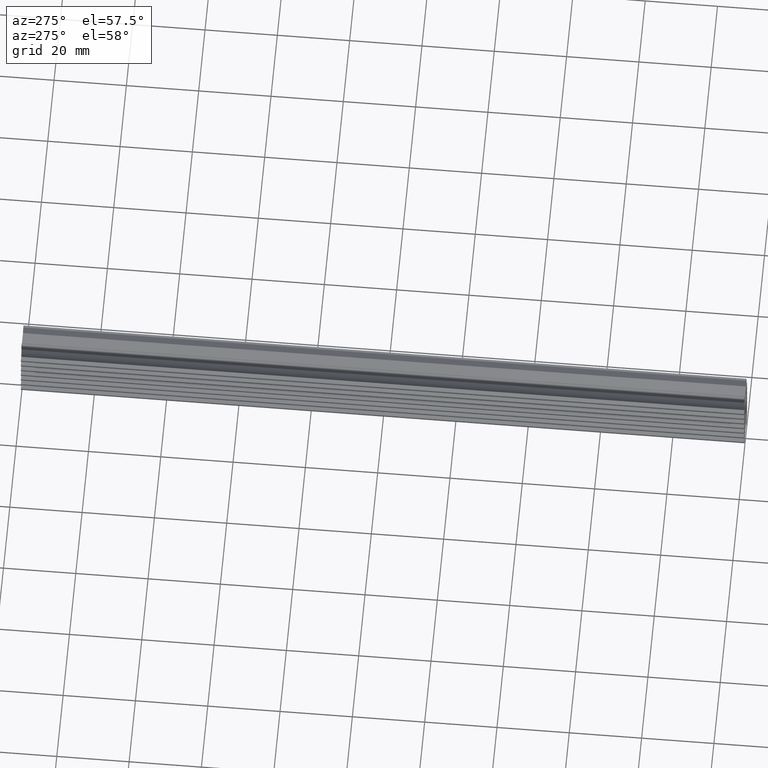
[diagram: clean part render]
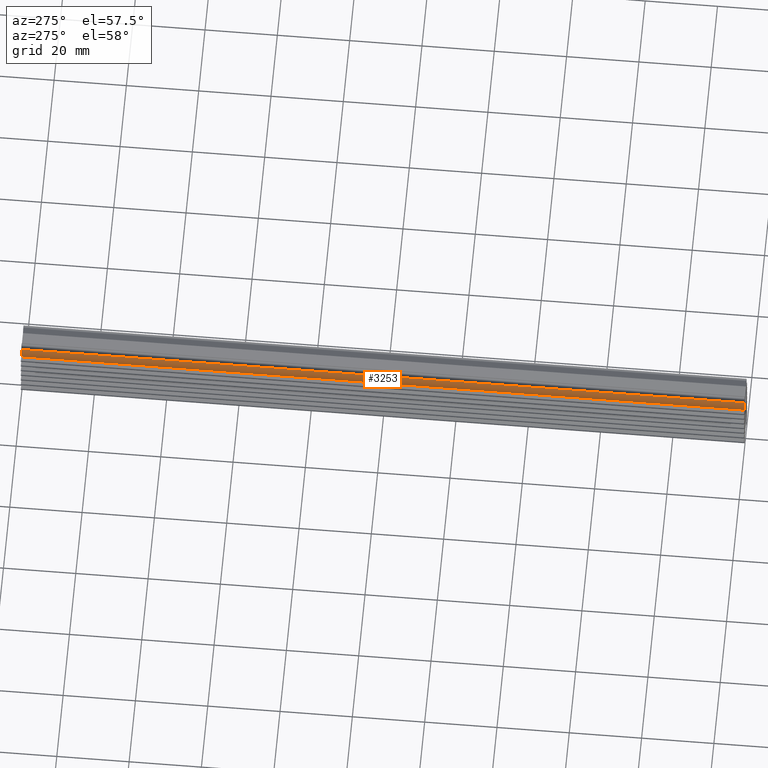
[diagram: same view with one face highlighted and labeled with its STEP entity id]
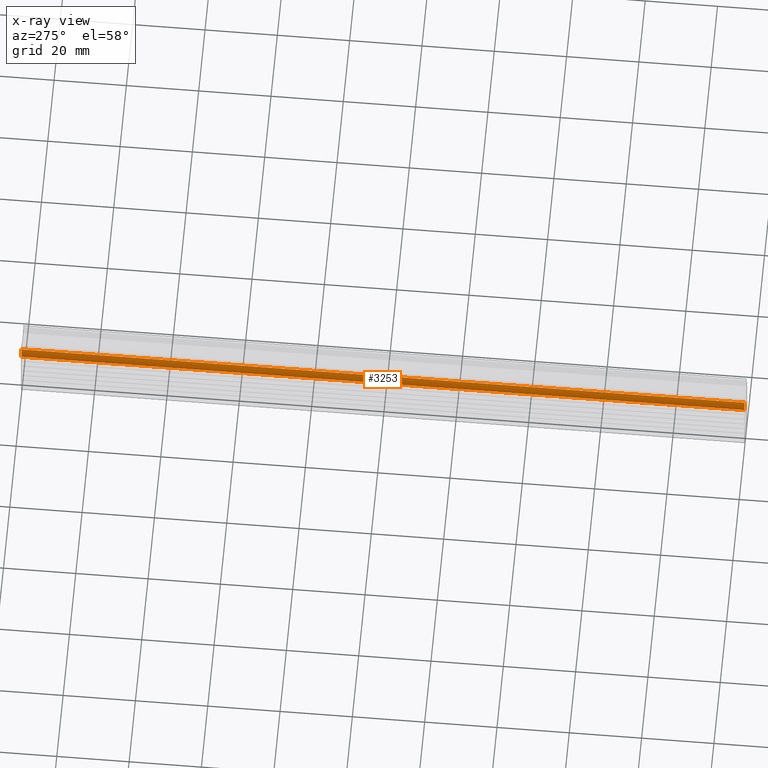
[diagram: x-ray of the same camera — body ghosted, the highlighted face saturated]
A machine part, auxiliary view. The second image highlights one B-rep face of the part: STEP entity #3253.
The next image is the same camera in x-ray: the body ghosted, the highlighted face saturated — about 0% of this face is hidden behind the body in this view.
In plain terms, the highlighted face is a freeform B-spline surface patch.
Its self-contained STEP definition (entity closure, byte-faithful):
#89=CARTESIAN_POINT('',(-2.946911364538300,0.0,-1.229981137425980));
#90=VERTEX_POINT('',#89);
#96=CARTESIAN_POINT('',(-3.750000000000100,0.0,-3.699999999999931));
#97=VERTEX_POINT('',#96);
#98=CARTESIAN_POINT('',(-2.946911364538300,0.0,-1.229981137425980));
#99=CARTESIAN_POINT('',(-3.750000000000100,0.0,-2.334434610987231));
#100=CARTESIAN_POINT('',(-3.750000000000100,0.0,-3.699999999999931));
#108=(BOUNDED_CURVE()B_SPLINE_CURVE(2,(#98,#99,#100),.UNSPECIFIED.,.F.,.U.)CURVE()GEOMETRIC_REPRESENTATION_ITEM()QUASI_UNIFORM_CURVE()RATIONAL_B_SPLINE_CURVE((1.0,0.950996430100593,1.0))REPRESENTATION_ITEM(''));
#109=EDGE_CURVE('',#90,#97,#108,.T.);
#1513=CARTESIAN_POINT('',(-3.750000000000100,200.0,-3.699999999999931));
#1514=VERTEX_POINT('',#1513);
#1520=CARTESIAN_POINT('',(-2.946911364538300,200.0,-1.229981137425980));
#1521=VERTEX_POINT('',#1520);
#1522=CARTESIAN_POINT('',(-2.946911364538312,200.0,-1.229981137425973));
#1523=CARTESIAN_POINT('',(-3.750000000000100,199.999999999999970,-2.334434610987231));
#1524=CARTESIAN_POINT('',(-3.750000000000100,200.0,-3.699999999999931));
#1532=(BOUNDED_CURVE()B_SPLINE_CURVE(2,(#1522,#1523,#1524),.UNSPECIFIED.,.F.,.U.)CURVE()GEOMETRIC_REPRESENTATION_ITEM()QUASI_UNIFORM_CURVE()RATIONAL_B_SPLINE_CURVE((1.0,0.950996430100593,1.0))REPRESENTATION_ITEM(''));
#1533=EDGE_CURVE('',#1521,#1514,#1532,.T.);
#3219=CARTESIAN_POINT('',(-3.750000000000100,200.0,-3.699999999999931));
#3220=CARTESIAN_POINT('',(-3.750000000000100,0.0,-3.699999999999931));
#3221=QUASI_UNIFORM_CURVE('',1,(#3219,#3220),.UNSPECIFIED.,.F.,.U.);
#3222=EDGE_CURVE('',#1514,#97,#3221,.T.);
#3229=CARTESIAN_POINT('',(-3.748018178620021,204.999999999999970,-3.829009193380321));
#3230=CARTESIAN_POINT('',(-3.748018178620021,-5.125000000000001,-3.829009193380321));
#3231=CARTESIAN_POINT('',(-3.794404607479893,205.000000000000090,-2.319573574937062));
#3232=CARTESIAN_POINT('',(-3.794404607479893,-5.125000000000000,-2.319573574937062));
#3233=CARTESIAN_POINT('',(-2.868973706159045,205.000000000000030,-1.126206391758286));
#3234=CARTESIAN_POINT('',(-2.868973706159045,-5.125000000000000,-1.126206391758286));
#3242=(BOUNDED_SURFACE()B_SPLINE_SURFACE(1,2,((#3229,#3231,#3233),(#3230,#3232,#3234)),.UNSPECIFIED.,.F.,.F.,.U.)B_SPLINE_SURFACE_WITH_KNOTS((2,2),(3,3),(0.0,210.125000000000110),(0.0,2.928513655474693),.UNSPECIFIED.)GEOMETRIC_REPRESENTATION_ITEM()RATIONAL_B_SPLINE_SURFACE(((0.997665722151279,0.935953965503648,0.991577395857683),(0.997665722151279,0.935953965503648,0.991577395857683)))REPRESENTATION_ITEM('')SURFACE());
#3243=ORIENTED_EDGE('',*,*,#109,.F.);
#3244=CARTESIAN_POINT('',(-2.946911364538300,200.0,-1.229981137425980));
#3245=CARTESIAN_POINT('',(-2.946911364538300,0.0,-1.229981137425980));
#3246=QUASI_UNIFORM_CURVE('',1,(#3244,#3245),.UNSPECIFIED.,.F.,.U.);
#3247=EDGE_CURVE('',#1521,#90,#3246,.T.);
#3248=ORIENTED_EDGE('',*,*,#3247,.F.);
#3249=ORIENTED_EDGE('',*,*,#1533,.T.);
#3250=ORIENTED_EDGE('',*,*,#3222,.T.);
#3251=EDGE_LOOP('',(#3243,#3248,#3249,#3250));
#3252=FACE_OUTER_BOUND('',#3251,.T.);
#3253=ADVANCED_FACE('',(#3252),#3242,.T.);